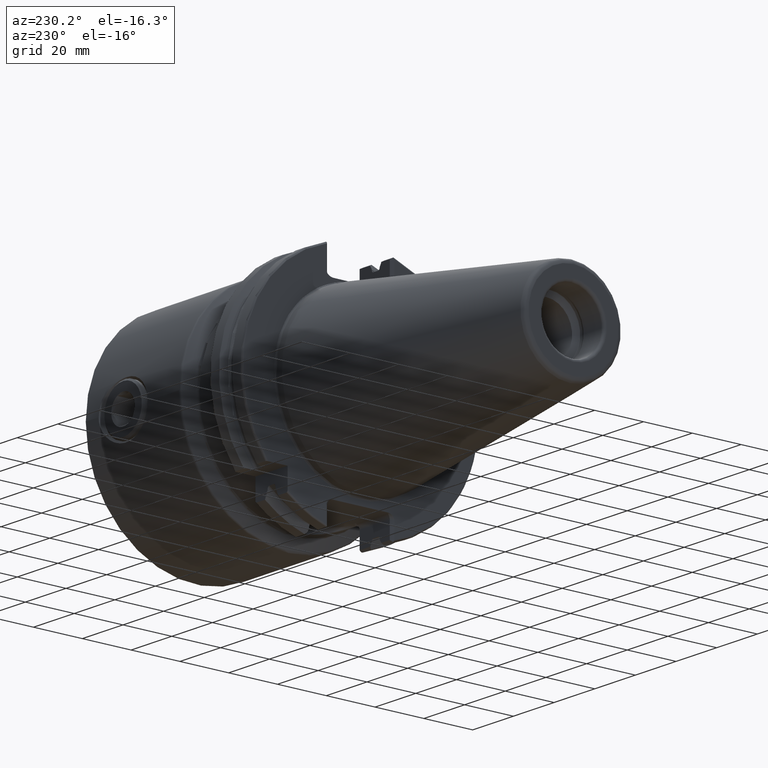
[diagram: clean part render]
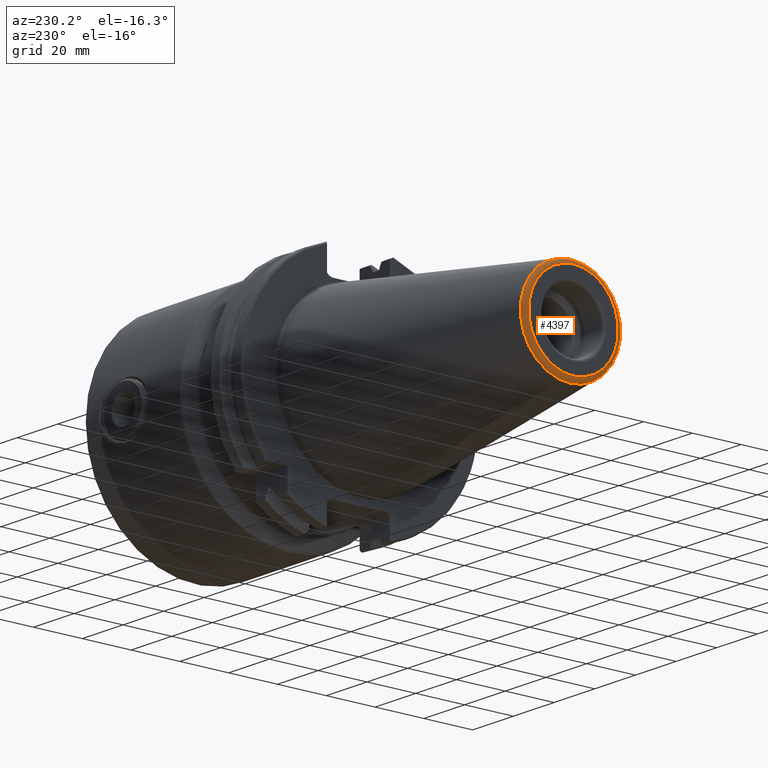
[diagram: same view with one face highlighted and labeled with its STEP entity id]
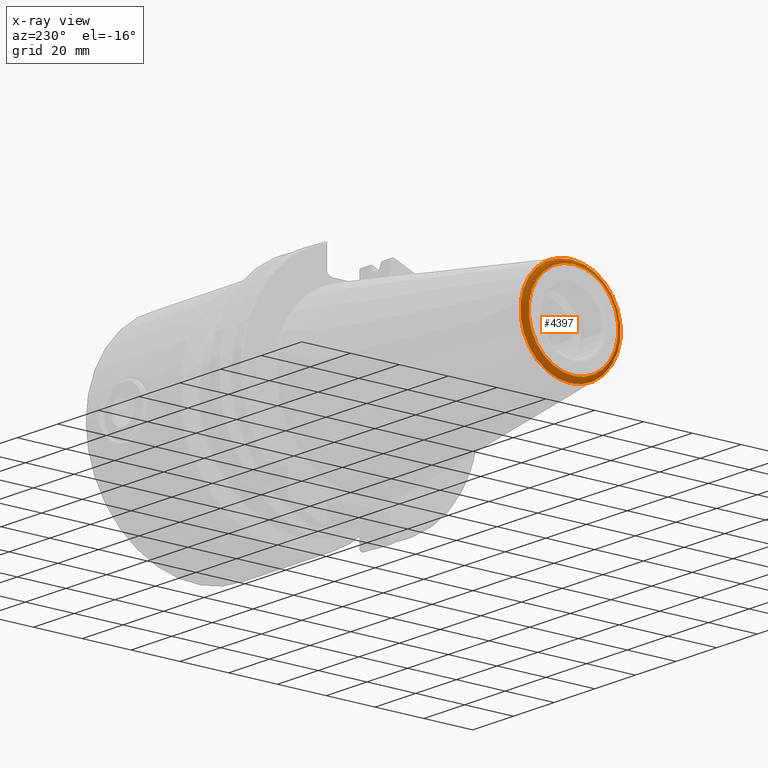
[diagram: x-ray of the same camera — body ghosted, the highlighted face saturated]
A machine part, auxiliary view. The second image highlights one B-rep face of the part: STEP entity #4397.
The next image is the same camera in x-ray: the body ghosted, the highlighted face saturated — about 0% of this face is hidden behind the body in this view.
In plain terms, the highlighted toroidal blend (fillet) surface has major radius 18.3788 mm and minor (blend) radius 2 mm.
Its self-contained STEP definition (entity closure, byte-faithful):
#8 = CARTESIAN_POINT ( 'NONE',  ( -99.88861378614345200, 0.0000000000000000000, 20.35791048952072300 ) ) ;
#55 = EDGE_LOOP ( 'NONE', ( #1732 ) ) ;
#454 = AXIS2_PLACEMENT_3D ( 'NONE', #1853, #2946, #2605 ) ;
#653 = FACE_OUTER_BOUND ( 'NONE', #55, .T. ) ;
#668 = CARTESIAN_POINT ( 'NONE',  ( -99.88861378614345200, 0.0000000000000000000, 0.0000000000000000000 ) ) ;
#816 = EDGE_LOOP ( 'NONE', ( #2053 ) ) ;
#947 = CARTESIAN_POINT ( 'NONE',  ( -101.5999999999999800, 0.0000000000000000000, 0.0000000000000000000 ) ) ;
#972 = EDGE_CURVE ( 'NONE', #1454, #1454, #2503, .T. ) ;
#1195 = TOROIDAL_SURFACE ( 'NONE', #454, 18.37884452739416500, 1.999999999999991300 ) ;
#1294 = EDGE_CURVE ( 'NONE', #3274, #3274, #1849, .T. ) ;
#1454 = VERTEX_POINT ( 'NONE', #8 ) ;
#1732 = ORIENTED_EDGE ( 'NONE', *, *, #1294, .F. ) ;
#1849 = CIRCLE ( 'NONE', #2945, 18.37884452739416500 ) ;
#1853 = CARTESIAN_POINT ( 'NONE',  ( -99.59999999999999400, 0.0000000000000000000, 0.0000000000000000000 ) ) ;
#2053 = ORIENTED_EDGE ( 'NONE', *, *, #972, .T. ) ;
#2197 = AXIS2_PLACEMENT_3D ( 'NONE', #668, #3336, #3308 ) ;
#2461 = DIRECTION ( 'NONE',  ( -1.000000000000000000, -0.0000000000000000000, -0.0000000000000000000 ) ) ;
#2503 = CIRCLE ( 'NONE', #2197, 20.35791048952072300 ) ;
#2605 = DIRECTION ( 'NONE',  ( 0.0000000000000000000, 0.0000000000000000000, 1.000000000000000000 ) ) ;
#2945 = AXIS2_PLACEMENT_3D ( 'NONE', #947, #2461, #3971 ) ;
#2946 = DIRECTION ( 'NONE',  ( -1.000000000000000000, -0.0000000000000000000, -0.0000000000000000000 ) ) ;
#3069 = CARTESIAN_POINT ( 'NONE',  ( -101.5999999999999800, 0.0000000000000000000, 18.37884452739416500 ) ) ;
#3274 = VERTEX_POINT ( 'NONE', #3069 ) ;
#3308 = DIRECTION ( 'NONE',  ( 0.0000000000000000000, 0.0000000000000000000, 1.000000000000000000 ) ) ;
#3336 = DIRECTION ( 'NONE',  ( -1.000000000000000000, -0.0000000000000000000, -0.0000000000000000000 ) ) ;
#3429 = FACE_OUTER_BOUND ( 'NONE', #816, .T. ) ;
#3971 = DIRECTION ( 'NONE',  ( 0.0000000000000000000, 0.0000000000000000000, 1.000000000000000000 ) ) ;
#4397 = ADVANCED_FACE ( 'NONE', ( #653, #3429 ), #1195, .T. ) ;